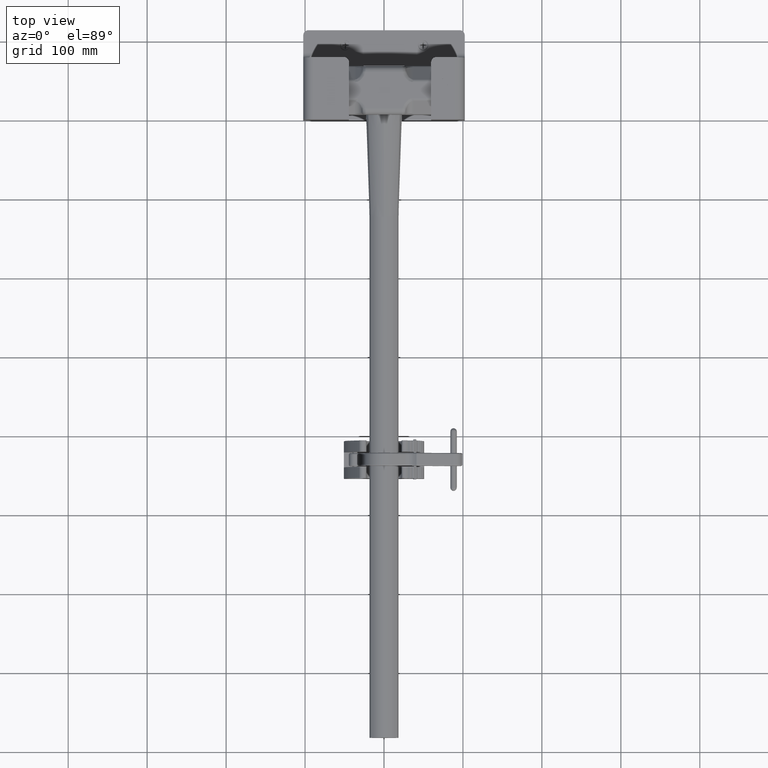
[diagram: clean part render]
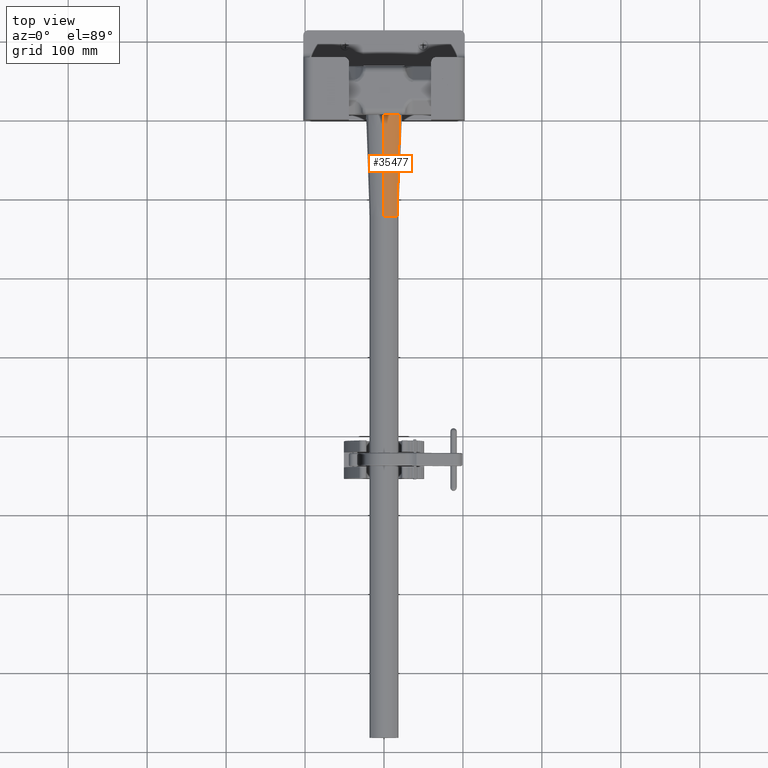
[diagram: same view with one face highlighted and labeled with its STEP entity id]
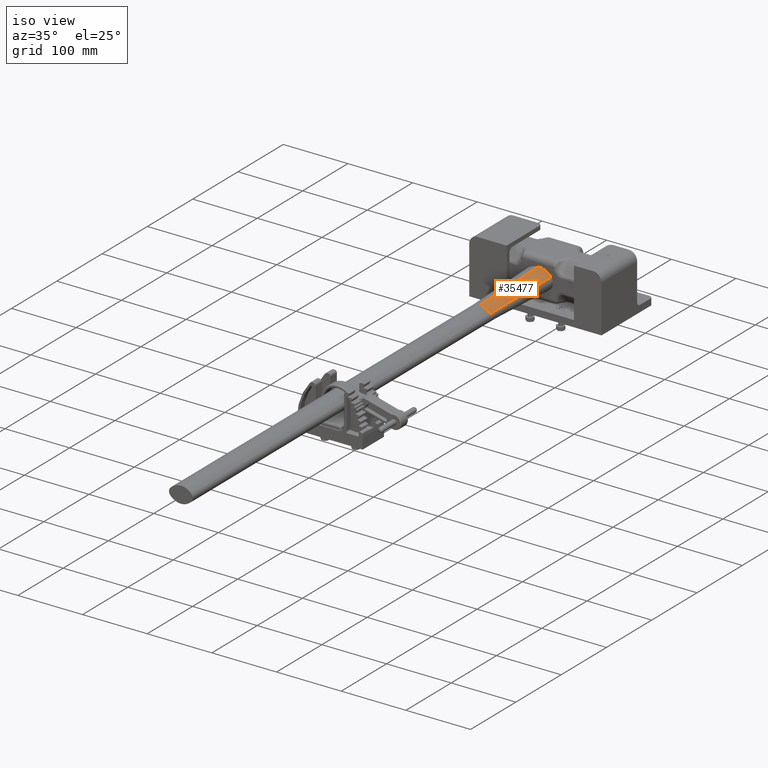
[diagram: same view with one face highlighted and labeled with its STEP entity id]
A machine part, top view. The second image highlights one B-rep face of the part: STEP entity #35477.
A second angle (iso view) of the same face is appended — the face is thin or edge-on in the first view.
In plain terms, the highlighted conical surface has half-angle 2 deg.
Its self-contained STEP definition (entity closure, byte-faithful):
#742 = FACE_OUTER_BOUND ( 'NONE', #17193, .T. ) ;
#749 = CONICAL_SURFACE ( 'NONE', #52207, 0.8599999999999998800, 0.03490658503988666700 ) ;
#2652 = DIRECTION ( 'NONE',  ( 0.0000000000000000000, 0.0000000000000000000, 1.000000000000000000 ) ) ;
#2658 = CARTESIAN_POINT ( 'NONE',  ( 1.365923996832131600E-016, 26.00000000000000000, -0.3599999999999997600 ) ) ;
#2659 = DIRECTION ( 'NONE',  ( 0.0000000000000000000, 1.000000000000000000, 0.0000000000000000000 ) ) ;
#10850 = VERTEX_POINT ( 'NONE', #45269 ) ;
#10880 = VERTEX_POINT ( 'NONE', #47716 ) ;
#10907 = VERTEX_POINT ( 'NONE', #47743 ) ;
#10913 = VERTEX_POINT ( 'NONE', #47749 ) ;
#12628 = EDGE_CURVE ( 'NONE', #10850, #10880, #49453, .T. ) ;
#12948 = EDGE_CURVE ( 'NONE', #10907, #10880, #49906, .T. ) ;
#12958 = EDGE_CURVE ( 'NONE', #10907, #10913, #49915, .T. ) ;
#13057 = EDGE_CURVE ( 'NONE', #10913, #10850, #50069, .T. ) ;
#16220 = ORIENTED_EDGE ( 'NONE', *, *, #13057, .F. ) ;
#16221 = ORIENTED_EDGE ( 'NONE', *, *, #12628, .F. ) ;
#16228 = ORIENTED_EDGE ( 'NONE', *, *, #12958, .F. ) ;
#16230 = ORIENTED_EDGE ( 'NONE', *, *, #12948, .T. ) ;
#17193 = EDGE_LOOP ( 'NONE', ( #16228, #16230, #16221, #16220 ) ) ;
#35477 = ADVANCED_FACE ( 'NONE', ( #742 ), #749, .T. ) ;
#45269 = CARTESIAN_POINT ( 'NONE',  ( 0.7813377612708749500, 31.06999999999999700, 0.3218947734727636800 ) ) ;
#47716 = CARTESIAN_POINT ( 'NONE',  ( 0.6479452054794521100, 26.00000000000000000, 0.2054794520547944500 ) ) ;
#47743 = CARTESIAN_POINT ( 'NONE',  ( 1.365923996832131600E-016, 26.00000000000000000, 0.4999999999999999400 ) ) ;
#47749 = CARTESIAN_POINT ( 'NONE',  ( 1.365923996832131600E-016, 31.06999999999999700, 0.6770483013231614100 ) ) ;
#49449 = VECTOR ( 'NONE', #51099, 39.37007874015748900 ) ;
#49453 = LINE ( 'NONE', #51088, #49449 ) ;
#49906 = CIRCLE ( 'NONE', #51735, 0.8599999999999996500 ) ;
#49915 = LINE ( 'NONE', #53256, #49921 ) ;
#49921 = VECTOR ( 'NONE', #53259, 39.37007874015748100 ) ;
#50069 = CIRCLE ( 'NONE', #51775, 1.037048301323161100 ) ;
#51088 = CARTESIAN_POINT ( 'NONE',  ( 0.6479452054794521100, 26.00000000000000000, 0.2054794520547946200 ) ) ;
#51099 = DIRECTION ( 'NONE',  ( -0.02629414135119941000, -0.9993908270190957600, -0.02294761427013767800 ) ) ;
#51735 = AXIS2_PLACEMENT_3D ( 'NONE', #53229, #53230, #53231 ) ;
#51775 = AXIS2_PLACEMENT_3D ( 'NONE', #53548, #53552, #53553 ) ;
#52207 = AXIS2_PLACEMENT_3D ( 'NONE', #2658, #2659, #2652 ) ;
#53229 = CARTESIAN_POINT ( 'NONE',  ( 1.125820169263983600E-016, 26.00000000000000000, -0.3599999999999997600 ) ) ;
#53230 = DIRECTION ( 'NONE',  ( 0.0000000000000000000, 1.000000000000000000, 0.0000000000000000000 ) ) ;
#53231 = DIRECTION ( 'NONE',  ( 0.0000000000000000000, 0.0000000000000000000, 1.000000000000000000 ) ) ;
#53256 = CARTESIAN_POINT ( 'NONE',  ( 1.365923996832131600E-016, 26.00000000000000000, 0.5000000000000001100 ) ) ;
#53259 = DIRECTION ( 'NONE',  ( 0.0000000000000000000, 0.9993908270190957600, 0.03489949670250104600 ) ) ;
#53548 = CARTESIAN_POINT ( 'NONE',  ( 1.365923996832131600E-016, 31.06999999999999700, -0.3599999999999997600 ) ) ;
#53552 = DIRECTION ( 'NONE',  ( -0.0000000000000000000, 1.000000000000000000, 0.0000000000000000000 ) ) ;
#53553 = DIRECTION ( 'NONE',  ( 0.0000000000000000000, 0.0000000000000000000, 1.000000000000000000 ) ) ;